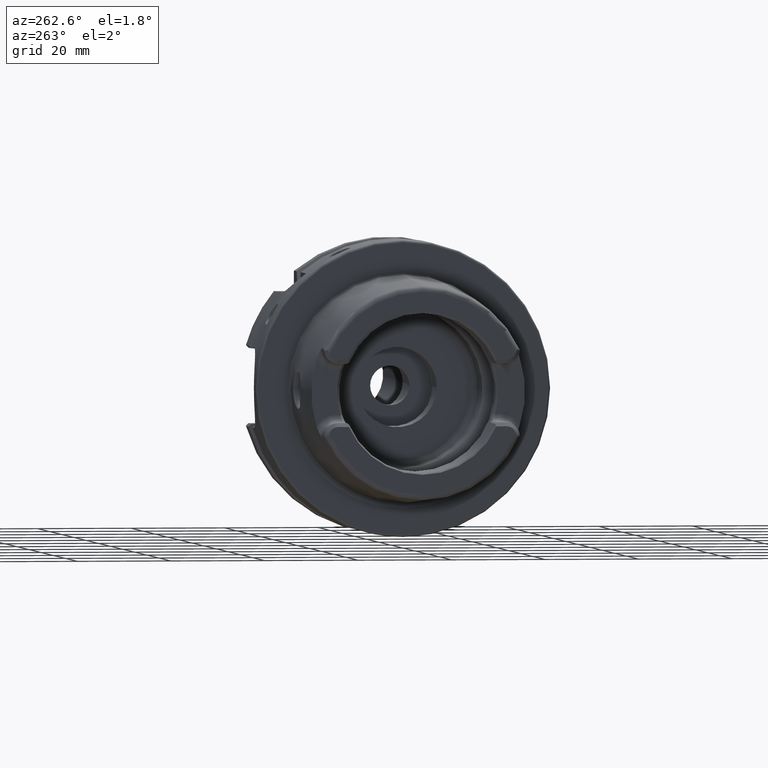
[diagram: clean part render]
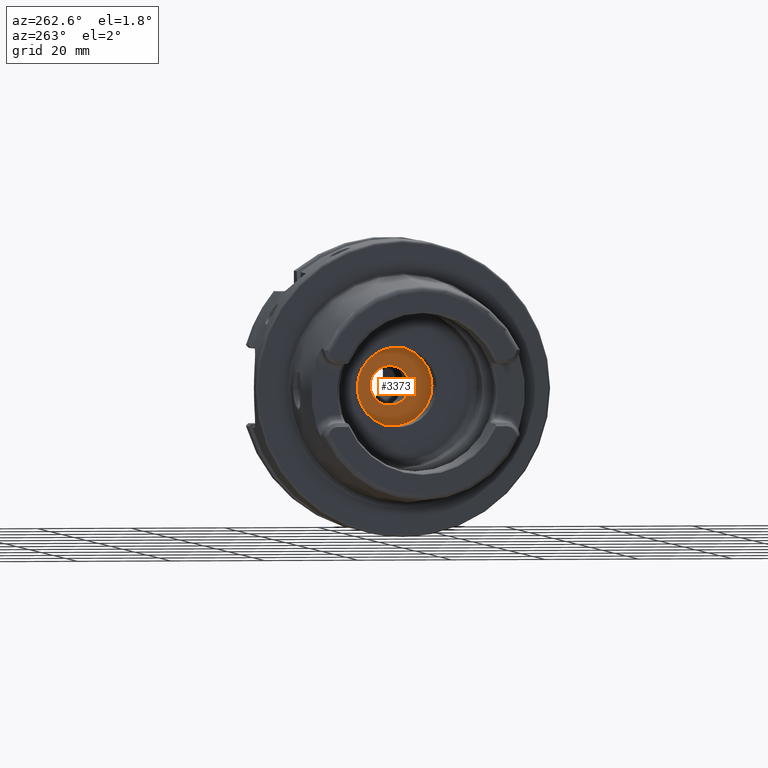
[diagram: same view with one face highlighted and labeled with its STEP entity id]
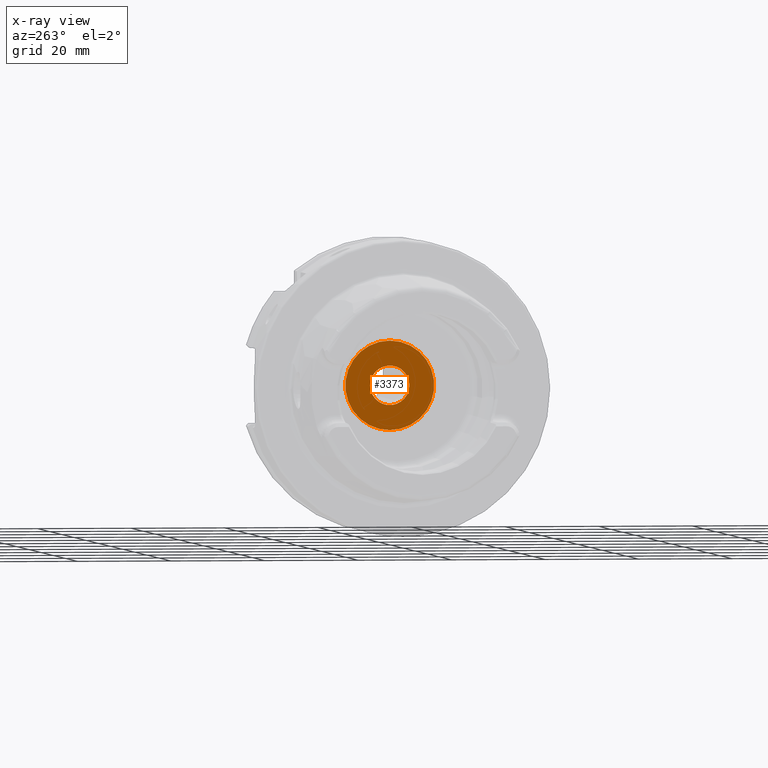
[diagram: x-ray of the same camera — body ghosted, the highlighted face saturated]
A machine part, auxiliary view. The second image highlights one B-rep face of the part: STEP entity #3373.
The next image is the same camera in x-ray: the body ghosted, the highlighted face saturated — about 0% of this face is hidden behind the body in this view.
In plain terms, the highlighted planar face has unit normal (1, 0, 0).
Its self-contained STEP definition (entity closure, byte-faithful):
#382=CARTESIAN_POINT('',(2.2E1,0.E0,0.E0));
#383=DIRECTION('',(-1.E0,0.E0,0.E0));
#384=DIRECTION('',(0.E0,0.E0,-1.E0));
#385=AXIS2_PLACEMENT_3D('',#382,#383,#384);
#391=CARTESIAN_POINT('',(2.2E1,0.E0,0.E0));
#392=DIRECTION('',(1.E0,0.E0,0.E0));
#393=DIRECTION('',(0.E0,0.E0,-1.E0));
#394=AXIS2_PLACEMENT_3D('',#391,#392,#393);
#396=CARTESIAN_POINT('',(2.2E1,0.E0,0.E0));
#397=DIRECTION('',(-1.E0,0.E0,0.E0));
#398=DIRECTION('',(0.E0,1.E0,0.E0));
#399=AXIS2_PLACEMENT_3D('',#396,#397,#398);
#401=CARTESIAN_POINT('',(2.2E1,0.E0,0.E0));
#402=DIRECTION('',(-1.E0,0.E0,0.E0));
#403=DIRECTION('',(0.E0,-1.E0,0.E0));
#404=AXIS2_PLACEMENT_3D('',#401,#402,#403);
#2561=CARTESIAN_POINT('',(2.2E1,0.E0,-9.5E0));
#2563=VERTEX_POINT('',#2561);
#2565=CARTESIAN_POINT('',(2.2E1,0.E0,9.5E0));
#2567=VERTEX_POINT('',#2565);
#2996=CARTESIAN_POINT('',(2.2E1,4.2E0,0.E0));
#2997=CARTESIAN_POINT('',(2.2E1,-4.2E0,0.E0));
#2998=VERTEX_POINT('',#2996);
#2999=VERTEX_POINT('',#2997);
#3358=CARTESIAN_POINT('',(2.2E1,0.E0,0.E0));
#3359=DIRECTION('',(1.E0,0.E0,0.E0));
#3360=DIRECTION('',(0.E0,0.E0,1.E0));
#3361=AXIS2_PLACEMENT_3D('',#3358,#3359,#3360);
#3362=PLANE('',#3361);
#3363=ORIENTED_EDGE('',*,*,#3337,.F.);
#3364=ORIENTED_EDGE('',*,*,#3353,.T.);
#3365=EDGE_LOOP('',(#3363,#3364));
#3366=FACE_OUTER_BOUND('',#3365,.F.);
#3368=ORIENTED_EDGE('',*,*,#3367,.T.);
#3370=ORIENTED_EDGE('',*,*,#3369,.T.);
#3371=EDGE_LOOP('',(#3368,#3370));
#3372=FACE_BOUND('',#3371,.F.);
#3373=ADVANCED_FACE('',(#3366,#3372),#3362,.F.);
#386=CIRCLE('',#385,9.5E0);
#395=CIRCLE('',#394,9.5E0);
#400=CIRCLE('',#399,4.2E0);
#405=CIRCLE('',#404,4.2E0);
#3337=EDGE_CURVE('',#2563,#2567,#386,.T.);
#3353=EDGE_CURVE('',#2563,#2567,#395,.T.);
#3367=EDGE_CURVE('',#2998,#2999,#400,.T.);
#3369=EDGE_CURVE('',#2999,#2998,#405,.T.);